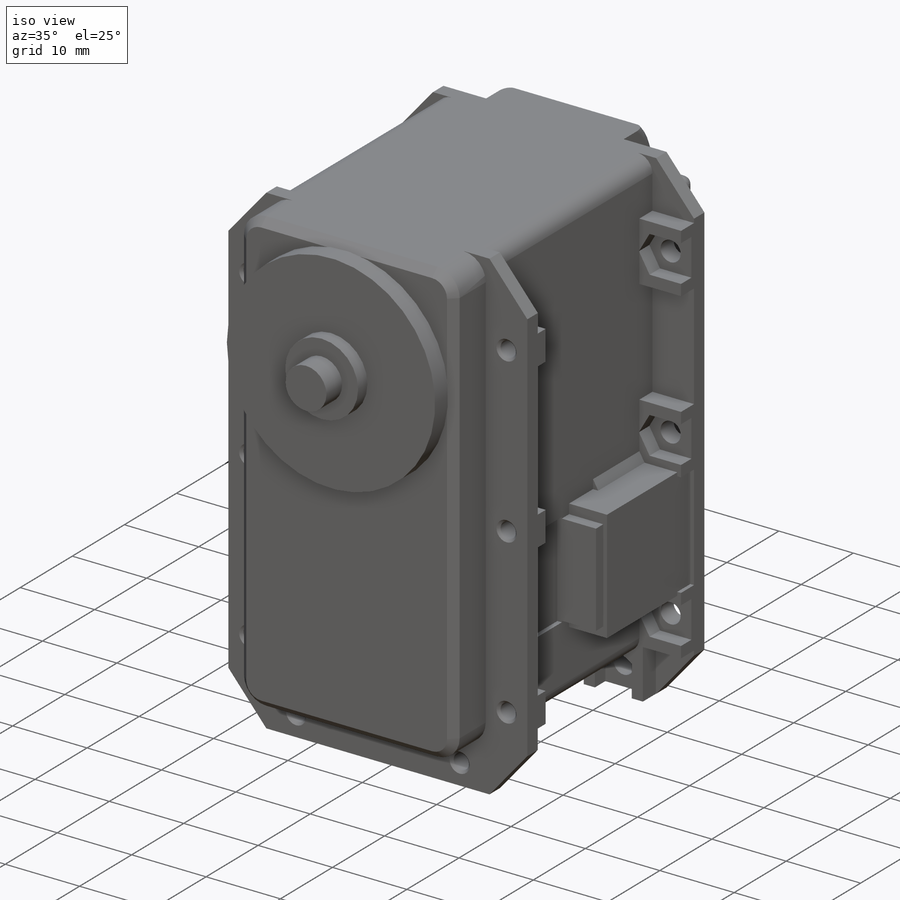
[diagram: iso view]
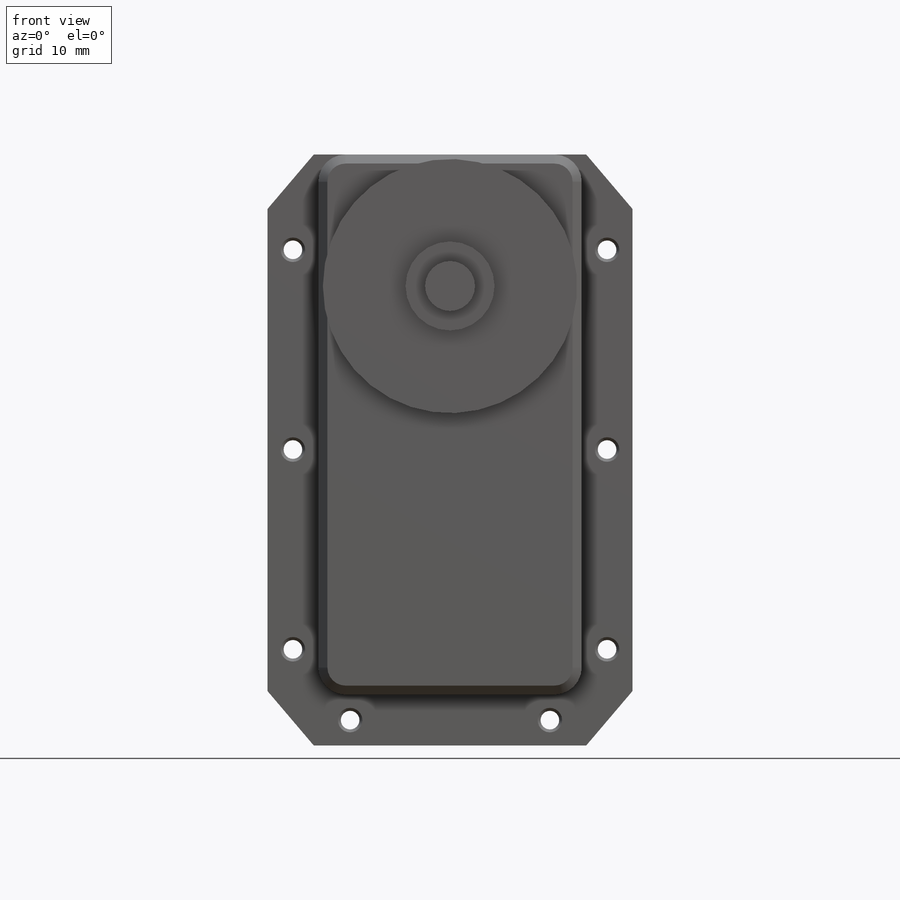
[diagram: front view]
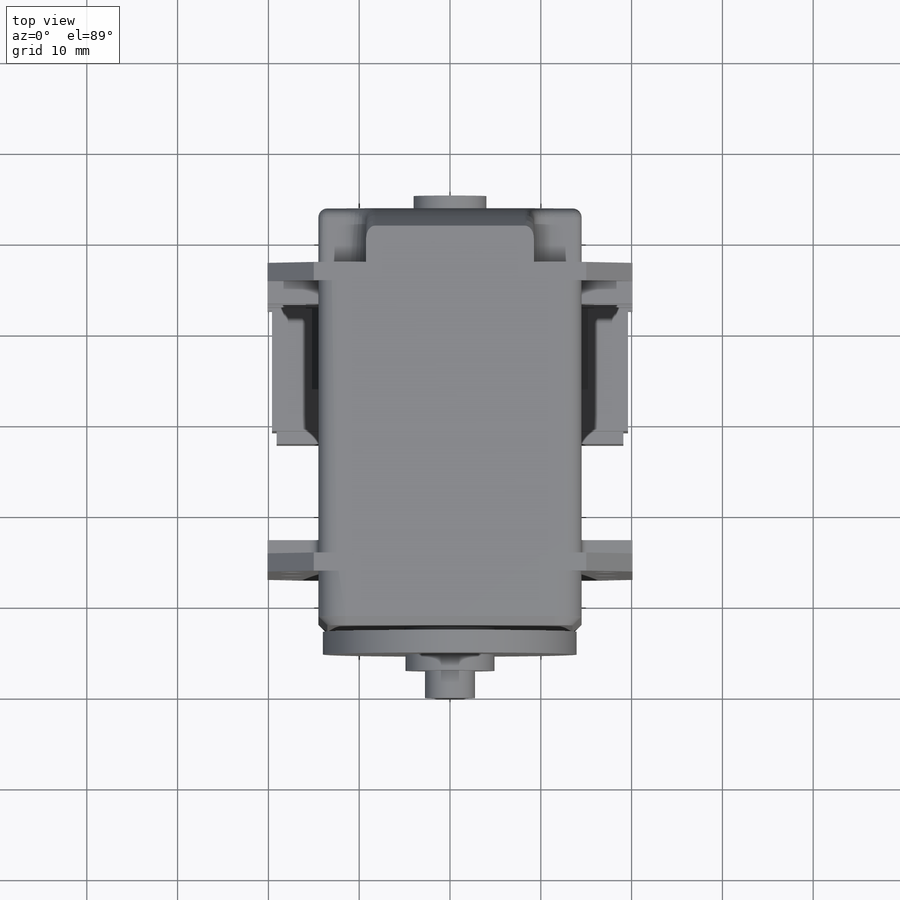
[diagram: top view]
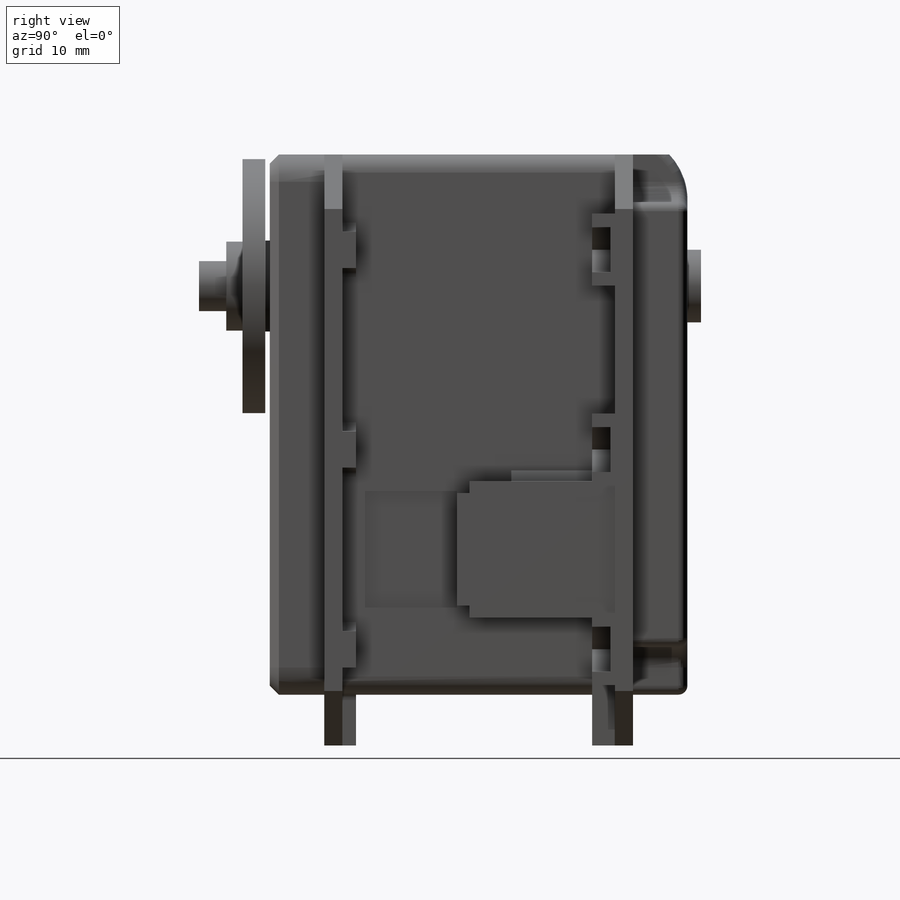
[diagram: right view]
SOLIDWORKS PART (.sldprt)
format: sldprt  version: not decoded by parser v0  size: 1,756,160 bytes
history: native  units: mm
features: sketch x72, fillet x27, extrude x24, cut_extrude x19, chamfer x17, hole x10, pattern_linear x8, plane x4, revolve x2, material x1 (+11 scaffold rows collapsed)
feature tree (195):
  scaffold x11  (default folders/planes/origin — collapsed)
  material  "Custom Plastic"
  plane  "Plane1"  Offset=9.25mm
  sketch  "Sketch1"
  extrude  "Boss-Extrude1"  Depth=18.5mm
  plane  "Plane2"
  sketch  "Sketch2"
  extrude  "Boss-Extrude2"  Depth=5mm
  sketch  "Sketch3"
  extrude  "Boss-Extrude3"  Depth=5mm
  sketch  "Sketch4"
  extrude  "Boss-Extrude4"  Depth=60.1mm
  sketch  "Sketch5"
  extrude  "Boss-Extrude5"  Depth=6.5mm
  sketch  "Sketch6"
  cut_extrude  "Cut-Extrude1"  Depth=2mm
  sketch  "Sketch7"
  extrude  "Boss-Extrude6"  Depth=2mm
  sketch  "Sketch8"
  cut_extrude  "Cut-Extrude2"  Depth=4mm
  sketch  "Sketch9"
  extrude  "Boss-Extrude7"  Depth=29.5mm
  sketch  "Sketch10"
  cut_extrude  "Cut-Extrude3"  Depth=29.5mm
  sketch  "Sketch11"
  cut_extrude  "Cut-Extrude4"  Depth=2mm
  sketch  "Sketch12"
  cut_extrude  "Cut-Extrude5"  Depth=2mm
  sketch  "Sketch13"
  cut_extrude  "Cut-Extrude6"  Depth=2mm
  sketch  "3DSketch1"
  pattern_linear  "LPattern1"  Count1=3 Count2=1 Spacing1=22mm Spacing2=22mm
  plane  "Plane3"
  sketch  "Sketch14"
  cut_extrude  "Cut-Extrude7"  Depth=2mm
  sketch  "3DSketch2"
  pattern_linear  "LPattern2"  Count1=3 Count2=1 Spacing1=22mm Spacing2=22mm
  sketch  "Sketch15"
  extrude  "Boss-Extrude8"  Depth=4.228942mm
  sketch  "Sketch16"
  extrude  "Boss-Extrude9"  Depth=5.6mm
  sketch  "Sketch17"
  extrude  "Boss-Extrude10"  Depth=5.6mm
  sketch  "Sketch18"
  extrude  "Boss-Extrude11"  Depth=5.6mm
  sketch  "Sketch19"
  extrude  "Boss-Extrude12"  Depth=5.1mm
  sketch  "Sketch20"
  extrude  "Boss-Extrude13"  Depth=1.4mm
  sketch  "Sketch21"
  cut_extrude  "Cut-Extrude8"  Depth=0.6mm
  sketch  "Sketch22"
  extrude  "Boss-Extrude14"  Depth=5.1mm
  sketch  "Sketch23"
  extrude  "Boss-Extrude15"  Depth=1.4mm
  sketch  "Sketch24"
  cut_extrude  "Cut-Extrude9"  Depth=0.6mm
  sketch  "Sketch25"
  cut_extrude  "Cut-Extrude10"  Depth=5.6mm
  sketch  "Sketch26"
  cut_extrude  "Cut-Extrude11"  Depth=0.5mm
  sketch  "Sketch27"
  cut_extrude  "Cut-Extrude12"  Depth=5.6mm
  sketch  "Sketch28"
  cut_extrude  "Cut-Extrude13"  Depth=5.6mm
  sketch  "Sketch29"
  cut_extrude  "Cut-Extrude14"  Depth=5.6mm
  sketch  "Sketch30"
  cut_extrude  "Cut-Extrude15"  Depth=5.6mm
  sketch  "Sketch31"
  cut_extrude  "Cut-Extrude16"  Depth=0.5mm
  sketch  "Sketch32"
  extrude  "Boss-Extrude16"  Depth=5.6mm
  sketch  "Sketch33"
  extrude  "Boss-Extrude17"  Depth=5.6mm
  sketch  "Sketch34"
  extrude  "Boss-Extrude18"  Depth=5.6mm
  sketch  "3DSketch3"
  pattern_linear  "LPattern3"  Count1=3 Count2=1 Spacing1=22mm Spacing2=22mm
  sketch  "Sketch35"
  extrude  "Boss-Extrude19"  Depth=5.6mm
  pattern_linear  "LPattern4"  Count1=3 Count2=1 Spacing1=22mm Spacing2=22mm
  sketch  "Sketch36"
  extrude  "Boss-Extrude20"  Depth=6mm
  sketch  "Sketch37"
  extrude  "Boss-Extrude21"  Depth=6mm
  sketch  "Sketch38"
  extrude  "Boss-Extrude22"  Depth=8.9mm
  sketch  "Sketch39"
  cut_extrude  "Cut-Extrude17"  Depth=2.5mm
  sketch  "Sketch40"
  cut_extrude  "Cut-Extrude18"  Depth=6.625mm
  sketch  "Sketch41"
  extrude  "Boss-Extrude23"  Depth=6mm
  sketch  "Sketch42"
  extrude  "Boss-Extrude24"  Depth=8.9mm
  sketch  "Sketch43"
  cut_extrude  "Cut-Extrude19"  Depth=1mm
  hole  "Hole1"  Diameter=15mm Depth=1mm
  sketch  "Sketch45"
  sketch  "Sketch44"  dims[Diameter=15.0mm Depth=1.0mm]
  plane  "Plane4"  Offset=9.5mm
  sketch  "Sketch46"
  revolve  "Revolve1"  Angle=360deg
  sketch  "Sketch47"
  revolve  "Revolve2"  Angle=360deg
  hole  "Hole2"  Diameter=2.7mm Depth=10mm
  sketch  "Sketch49"
  sketch  "Sketch48"  dims[Diameter=2.7mm Depth=10.0mm]
  sketch  "3DSketch4"
  pattern_linear  "LPattern5"  Count1=3 Count2=1 Spacing1=22mm Spacing2=22mm
  hole  "Hole3"  Diameter=2.7mm Depth=10mm
  sketch  "Sketch51"
  sketch  "Sketch50"  dims[Diameter=2.7mm Depth=10.0mm]
  sketch  "3DSketch5"
  pattern_linear  "LPattern6"  Count1=3 Count2=1 Spacing1=22mm Spacing2=22mm
  hole  "Hole4"  Diameter=2.7mm Depth=10mm
  sketch  "Sketch53"
  sketch  "Sketch52"  dims[Diameter=2.7mm Depth=10.0mm]
  hole  "Hole5"  Diameter=2.7mm Depth=10mm
  sketch  "Sketch55"
  sketch  "Sketch54"  dims[Diameter=2.7mm Depth=10.0mm]
  hole  "Hole6"  Diameter=2.05mm Depth=41.5mm
  sketch  "Sketch57"
  sketch  "Sketch56"  dims[Diameter=2.05mm Depth=41.5mm]
  hole  "Hole7"  Diameter=2.05mm Depth=41.5mm
  sketch  "Sketch59"
  sketch  "Sketch58"  dims[Diameter=2.05mm Depth=41.5mm]
  sketch  "3DSketch6"
  pattern_linear  "LPattern7"  Count1=3 Count2=1 Spacing1=22mm Spacing2=22mm
  hole  "Hole8"  Diameter=2.05mm Depth=41.5mm
  sketch  "Sketch61"
  sketch  "Sketch60"  dims[Diameter=2.05mm Depth=41.5mm]
  hole  "Hole9"  Diameter=2.05mm Depth=41.5mm
  sketch  "Sketch63"
  sketch  "Sketch62"  dims[Diameter=2.05mm Depth=41.5mm]
  sketch  "3DSketch7"
  pattern_linear  "LPattern8"  Count1=3 Count2=1 Spacing1=22mm Spacing2=22mm
  hole  "Hole10"  Diameter=3.2mm Depth=2.2mm
  sketch  "Sketch65"
  sketch  "Sketch64"  dims[Diameter=3.2mm Depth=2.2mm]
  fillet  "Fillet1"  Radius=2mm
  fillet  "Fillet2"  Radius=2mm
  fillet  "Fillet3"  Radius=2.25mm
  fillet  "Fillet4"  Radius=2.25mm
  fillet  "Fillet5"  Radius=2.25mm
  fillet  "Fillet6"  Radius=2.25mm
  fillet  "Fillet7"  Radius=3mm
  fillet  "Fillet8"  Radius=3mm
  fillet  "Fillet9"  Radius=3mm
  fillet  "Fillet10"  Radius=3mm
  chamfer  "Chamfer1"  Distance=0.325mm Angle=45deg
  chamfer  "Chamfer2"  Distance=5.1mm Angle=49.635463deg
  chamfer  "Chamfer3"  Distance=5.1mm Angle=49.635463deg
  chamfer  "Chamfer4"  Distance=5.1mm Angle=49.635463deg
  chamfer  "Chamfer5"  Distance=6mm Angle=40.364537deg
  chamfer  "Chamfer6"  Distance=6mm Angle=40.364537deg
  chamfer  "Chamfer7"  Distance=5.1mm Angle=49.635463deg
  chamfer  "Chamfer8"  Distance=6mm Angle=40.364537deg
  chamfer  "Chamfer9"  Distance=0.325mm Angle=45deg
  chamfer  "Chamfer10"  Distance=0.325mm Angle=45deg
  chamfer  "Chamfer11"  Distance=0.325mm Angle=45deg
  chamfer  "Chamfer12"  Distance=6mm Angle=40.364537deg
  chamfer  "Chamfer13"  Distance=0.325mm Angle=45deg
  chamfer  "Chamfer14"  Distance=0.325mm Angle=45deg
  chamfer  "Chamfer15"  Distance=0.325mm Angle=45deg
  chamfer  "Chamfer16"  Distance=0.325mm Angle=45deg
  chamfer  "Chamfer17"  Distance=1mm Angle=45deg
  fillet  "Fillet11"  Radius=1mm
  fillet  "Fillet12"  Radius=1mm
  fillet  "Fillet13"  Radius=1mm
  fillet  "Fillet14"  Radius=1mm
  fillet  "Fillet15"  Radius=1mm
  fillet  "Fillet16"  Radius=1mm
  fillet  "Fillet17"  Radius=1mm
  fillet  "Fillet18"  Radius=1mm
  fillet  "Fillet19"  Radius=1mm
  fillet  "Fillet20"  Radius=1mm
  fillet  "Fillet21"  Radius=1mm
  fillet  "Fillet22"  Radius=1mm
  fillet  "Fillet23"  Radius=1mm
  fillet  "Fillet24"  Radius=1mm
  fillet  "Fillet25"  Radius=0.999996mm
  fillet  "Fillet26"  Radius=2mm
  fillet  "Fillet27"  Radius=2mm
decode coverage: 117 of 179 modeling features carry decoded parameters
summary: Diameter pulled from absorbed wizard sketch
note: suppression state not decoded; provenance and decode notes live in map.json
